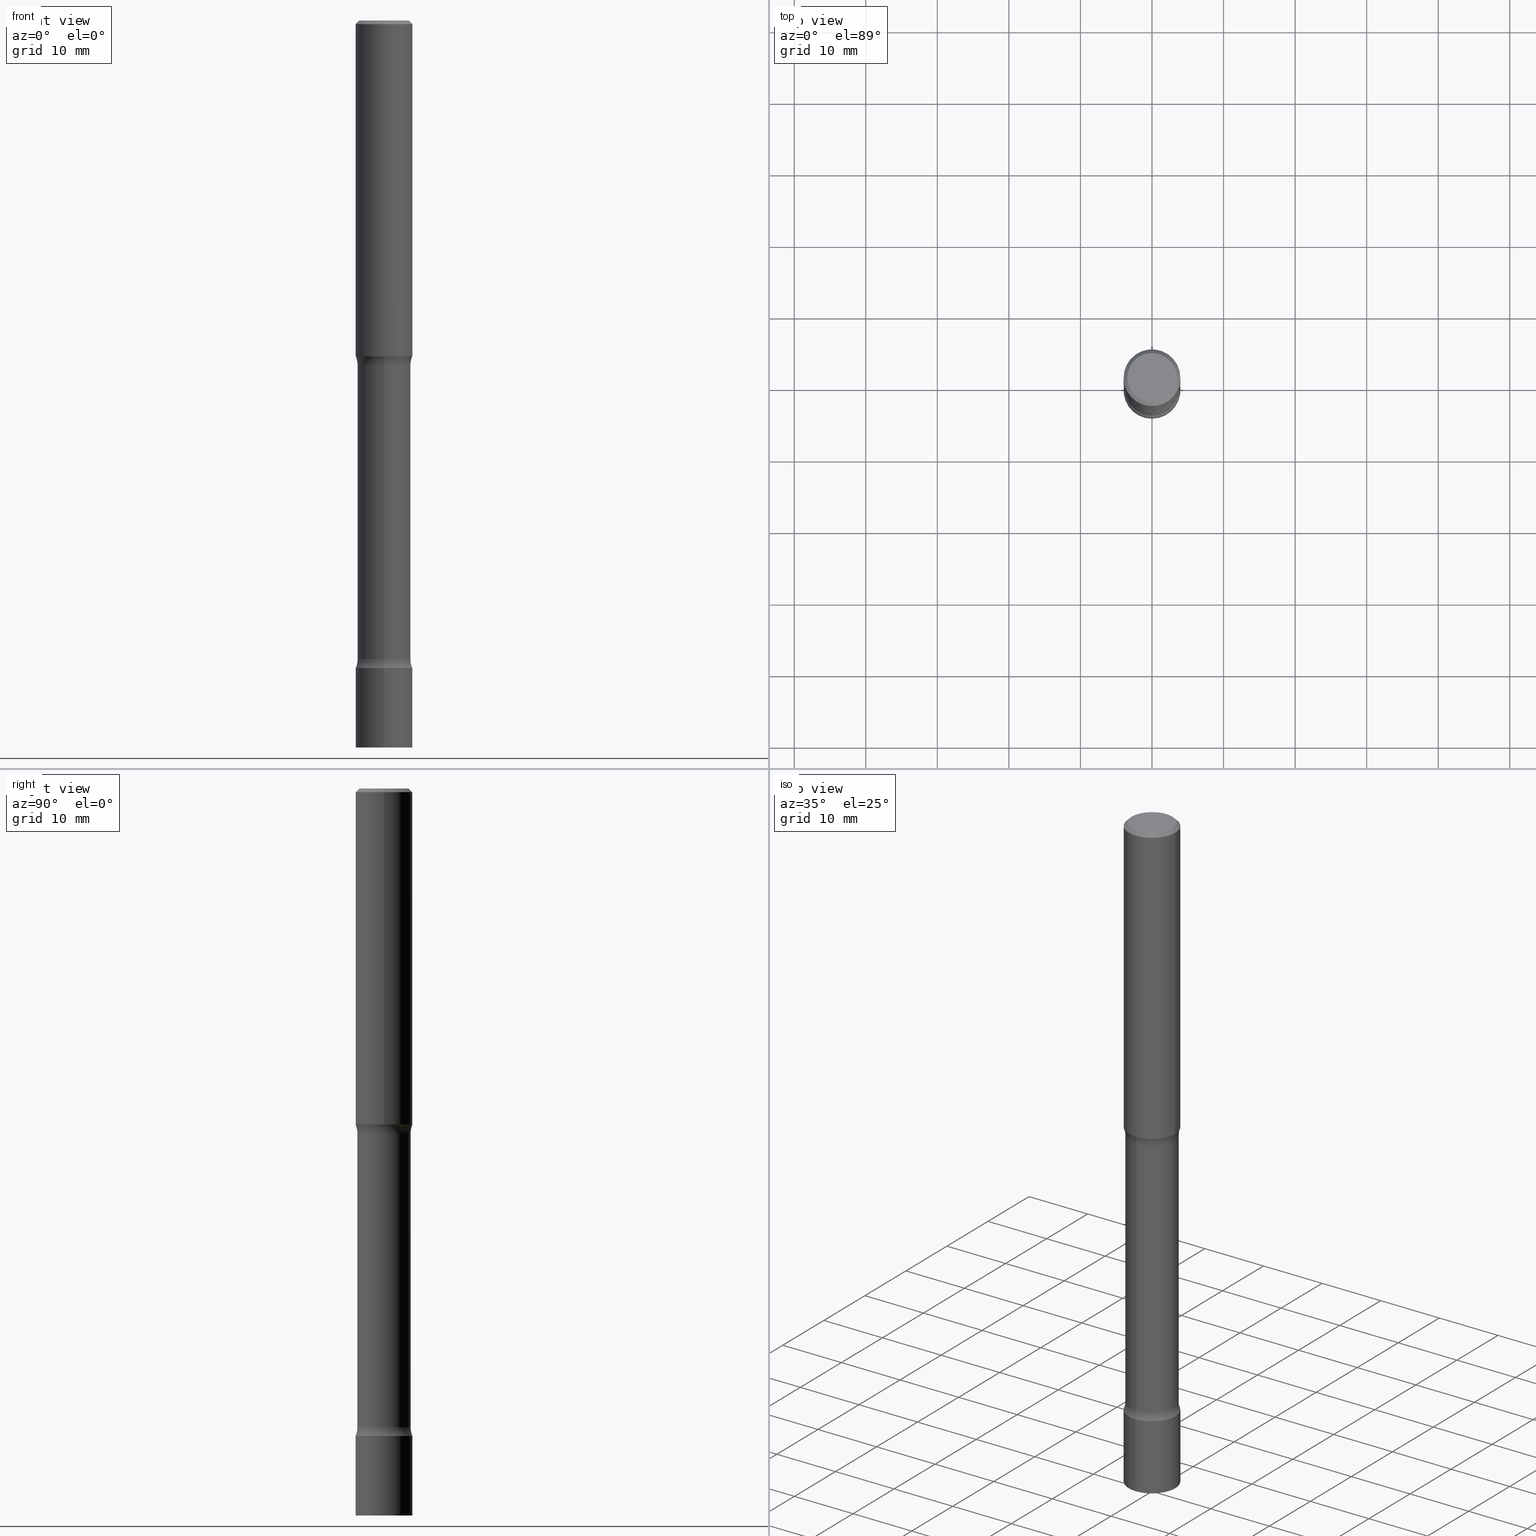
[diagram: canonical four-view strip — front | top / right | iso, engineering-drawing reading convention]
A machine part, canonical four-view strip (front | top / right | iso — engineering-drawing reading convention). The complete STEP part file that produces these views, byte-faithful:
ISO-10303-21;
HEADER;
FILE_DESCRIPTION (( 'STEP AP203' ),
    '1' );
FILE_NAME ('32731.STEP',
    '2024-03-11T13:17:54',
    ( '' ),
    ( '' ),
    'SwSTEP 2.0',
    'SolidWorks 2023',
    '' );
FILE_SCHEMA (( 'CONFIG_CONTROL_DESIGN' ));
ENDSEC;

DATA;
#1 = CLOSED_SHELL ( 'NONE', ( #132, #120, #252, #112, #453, #74, #250, #182 ) ) ;
#2 = AXIS2_PLACEMENT_3D ( 'NONE', #414, #341, #104 ) ;
#3 = DATE_AND_TIME ( #226, #218 ) ;
#4 = ADVANCED_FACE ( 'NONE', ( #448 ), #99, .F. ) ;
#5 = DIRECTION ( 'NONE',  ( 2.445804309076295273E-29, -3.491000879607367329E-15, -1.000000000000000000 ) ) ;
#6 = ORIENTED_EDGE ( 'NONE', *, *, #79, .F. ) ;
#7 = ORIENTED_EDGE ( 'NONE', *, *, #128, .F. ) ;
#8 = LOCAL_TIME ( 9, 17, 54.00000000000000000, #349 ) ;
#9 = ORIENTED_EDGE ( 'NONE', *, *, #29, .T. ) ;
#10 = CALENDAR_DATE ( 2024, 11, 3 ) ;
#11 = LINE ( 'NONE', #298, #338 ) ;
#12 = FACE_OUTER_BOUND ( 'NONE', #62, .T. ) ;
#13 = PERSON_AND_ORGANIZATION_ROLE ( 'creator' ) ;
#14 = ADVANCED_FACE ( 'NONE', ( #263 ), #418, .T. ) ;
#15 = AXIS2_PLACEMENT_3D ( 'NONE', #179, #342, #497 ) ;
#16 = CARTESIAN_POINT ( 'NONE',  ( -1.091087918388381552E-15, -0.1562500000000140166, -3.999999999999999556 ) ) ;
#17 = ORIENTED_EDGE ( 'NONE', *, *, #105, .F. ) ;
#18 = PRODUCT_DEFINITION_SHAPE ( 'NONE', 'NONE',  #242 ) ;
#19 = FACE_OUTER_BOUND ( 'NONE', #273, .T. ) ;
#20 = CARTESIAN_POINT ( 'NONE',  ( -0.1562499999999998612, 1.110223024625155554E-15, -7.685836078523284153E-30 ) ) ;
#21 = APPROVAL ( #114, 'UNSPECIFIED' ) ;
#22 = TOROIDAL_SURFACE ( 'NONE', #15, 0.2712500000000003242, 0.1250000000000000000 ) ;
#23 = PERSON_AND_ORGANIZATION ( #34, #126 ) ;
#24 = EDGE_LOOP ( 'NONE', ( #85, #365 ) ) ;
#25 = EDGE_CURVE ( 'NONE', #390, #95, #149, .T. ) ;
#26 = PLANE ( 'NONE',  #50 ) ;
#27 = CARTESIAN_POINT ( 'NONE',  ( -1.071952812151715229E-15, -0.1562500000000125178, -3.562499999999999556 ) ) ;
#28 = CARTESIAN_POINT ( 'NONE',  ( 4.324148429730863484E-29, -7.074231895616472148E-15, -1.896989794855663325 ) ) ;
#29 = EDGE_CURVE ( 'NONE', #52, #389, #373, .T. ) ;
#30 = AXIS2_PLACEMENT_3D ( 'NONE', #245, #327, #142 ) ;
#31 = CIRCLE ( 'NONE', #75, 0.1462500000000003242 ) ;
#32 = CARTESIAN_POINT ( 'NONE',  ( 9.783217236305181094E-29, -1.396400351842947089E-14, -4.000000000000000000 ) ) ;
#33 = DIRECTION ( 'NONE',  ( -1.000000000000000000, 6.982962677686265922E-15, -4.883557194083112901E-29 ) ) ;
#34 = PERSON ( 'UNSPECIFIED', 'UNSPECIFIED', 'UNSPECIFIED', ('UNSPECIFIED'), ('UNSPECIFIED'), ('UNSPECIFIED') ) ;
#35 = CARTESIAN_POINT ( 'NONE',  ( 1.110223024625249034E-15, 0.1562499999999860667, -4.000000000000000888 ) ) ;
#36 = FACE_OUTER_BOUND ( 'NONE', #168, .T. ) ;
#37 = CARTESIAN_POINT ( 'NONE',  ( 1.894128626322485594E-15, 0.2712499999999877232, -3.513510205144337206 ) ) ;
#38 = PERSON_AND_ORGANIZATION ( #34, #126 ) ;
#39 = CIRCLE ( 'NONE', #461, 0.1250000000000000000 ) ;
#40 = ORIENTED_EDGE ( 'NONE', *, *, #432, .T. ) ;
#41 = ORIENTED_EDGE ( 'NONE', *, *, #45, .F. ) ;
#42 = CARTESIAN_POINT ( 'NONE',  ( 1.894128626322444968E-15, 0.2712499999999932743, -1.896989794855663991 ) ) ;
#43 = ORIENTED_EDGE ( 'NONE', *, *, #360, .T. ) ;
#44 = EDGE_LOOP ( 'NONE', ( #202, #392, #63, #398 ) ) ;
#45 = EDGE_CURVE ( 'NONE', #256, #88, #11, .T. ) ;
#46 = APPROVAL ( #184, 'UNSPECIFIED' ) ;
#47 = DIRECTION ( 'NONE',  ( 6.982962677686266711E-15, 1.000000000000000000, -3.735860504156251567E-15 ) ) ;
#48 = FACE_OUTER_BOUND ( 'NONE', #394, .T. ) ;
#49 = DIRECTION ( 'NONE',  ( -2.445468806185136877E-29, 3.491481338843145188E-15, 1.000000000000000000 ) ) ;
#50 = AXIS2_PLACEMENT_3D ( 'NONE', #190, #111, #189 ) ;
#51 = DATE_TIME_ROLE ( 'creation_date' ) ;
#52 = VERTEX_POINT ( 'NONE', #286 ) ;
#53 = CARTESIAN_POINT ( 'NONE',  ( 8.584077680876132565E-29, -1.227895773428642942E-14, -3.513510205144336318 ) ) ;
#54 = CARTESIAN_POINT ( 'NONE',  ( 4.324148429730863484E-29, -7.074231895616472148E-15, -1.896989794855663325 ) ) ;
#55 = EDGE_CURVE ( 'NONE', #57, #88, #469, .T. ) ;
#56 = ORIENTED_EDGE ( 'NONE', *, *, #486, .T. ) ;
#57 = VERTEX_POINT ( 'NONE', #403 ) ;
#58 = AXIS2_PLACEMENT_3D ( 'NONE', #240, #489, #330 ) ;
#59 = DIRECTION ( 'NONE',  ( 6.860497997771530774E-15, 1.000000000000000000, 0.000000000000000000 ) ) ;
#60 = EDGE_CURVE ( 'NONE', #127, #294, #411, .T. ) ;
#61 = CIRCLE ( 'NONE', #479, 0.1462500000000003242 ) ;
#62 = EDGE_LOOP ( 'NONE', ( #289, #254 ) ) ;
#63 = ORIENTED_EDGE ( 'NONE', *, *, #283, .T. ) ;
#64 = DIRECTION ( 'NONE',  ( 2.635246189303941165E-29, -3.219709324759167603E-15, -1.000000000000000000 ) ) ;
#65 = VERTEX_POINT ( 'NONE', #207 ) ;
#66 = DIRECTION ( 'NONE',  ( 2.635246189303941165E-29, -3.219709324759167603E-15, -1.000000000000000000 ) ) ;
#67 = EDGE_CURVE ( 'NONE', #294, #389, #183, .T. ) ;
#68 = ORIENTED_EDGE ( 'NONE', *, *, #357, .F. ) ;
#69 = CARTESIAN_POINT ( 'NONE',  ( -1.860910081895441935E-15, -0.2712500000000122591, -3.513510205144335430 ) ) ;
#70 = TOROIDAL_SURFACE ( 'NONE', #350, 0.2712499999999999911, 0.1249999999999999445 ) ;
#71 = DIRECTION ( 'NONE',  ( 1.000000000000000000, 0.000000000000000000, 0.000000000000000000 ) ) ;
#72 = DIRECTION ( 'NONE',  ( -2.445468806185136597E-29, 3.491481338843145583E-15, 1.000000000000000000 ) ) ;
#73 = DIRECTION ( 'NONE',  ( -2.445468806185136597E-29, 3.491481338843145583E-15, 1.000000000000000000 ) ) ;
#74 = ADVANCED_FACE ( 'NONE', ( #300 ), #253, .F. ) ;
#75 = AXIS2_PLACEMENT_3D ( 'NONE', #54, #370, #209 ) ;
#76 = DIRECTION ( 'NONE',  ( 1.000000000000000000, -6.982962677686266711E-15, 4.876176775795936353E-29 ) ) ;
#77 = DIRECTION ( 'NONE',  ( -6.982962677686265922E-15, -1.000000000000000000, 0.000000000000000000 ) ) ;
#78 = SECURITY_CLASSIFICATION_LEVEL ( 'unclassified' ) ;
#79 = EDGE_CURVE ( 'NONE', #200, #57, #236, .T. ) ;
#80 = PRODUCT_RELATED_PRODUCT_CATEGORY ( 'detail', '', ( #96 ) ) ;
#81 = DIRECTION ( 'NONE',  ( 2.635246189303941165E-29, -3.219709324759167603E-15, -1.000000000000000000 ) ) ;
#82 = FACE_OUTER_BOUND ( 'NONE', #44, .T. ) ;
#83 = ORIENTED_EDGE ( 'NONE', *, *, #426, .F. ) ;
#84 = AXIS2_PLACEMENT_3D ( 'NONE', #395, #87, #47 ) ;
#85 = ORIENTED_EDGE ( 'NONE', *, *, #444, .T. ) ;
#86 = DIRECTION ( 'NONE',  ( -6.982962677686265922E-15, -1.000000000000000000, 0.000000000000000000 ) ) ;
#87 = DIRECTION ( 'NONE',  ( 2.635246189303941165E-29, -3.219709324759167603E-15, -1.000000000000000000 ) ) ;
#88 = VERTEX_POINT ( 'NONE', #290 ) ;
#89 = ORIENTED_EDGE ( 'NONE', *, *, #364, .F. ) ;
#90 = CARTESIAN_POINT ( 'NONE',  ( 1.110223024625254556E-15, 0.1562499999999876210, -3.562500000000000444 ) ) ;
#91 = VECTOR ( 'NONE', #64, 39.37007874015748143 ) ;
#92 = CC_DESIGN_APPROVAL ( #46, ( #242 ) ) ;
#93 = APPROVAL_ROLE ( '' ) ;
#94 = DIRECTION ( 'NONE',  ( 2.635246189303941165E-29, -3.219709324759167603E-15, -1.000000000000000000 ) ) ;
#95 = VERTEX_POINT ( 'NONE', #16 ) ;
#96 = PRODUCT ( '32731', '32731', '', ( #308 ) ) ;
#97 = ORIENTED_EDGE ( 'NONE', *, *, #283, .F. ) ;
#98 = CARTESIAN_POINT ( 'NONE',  ( 0.1562499999999998612, -1.091087918388478187E-15, 7.619026212181143371E-30 ) ) ;
#99 = PLANE ( 'NONE',  #115 ) ;
#100 = DIRECTION ( 'NONE',  ( 2.635246189303941165E-29, -3.219709324759167603E-15, -1.000000000000000000 ) ) ;
#101 = APPROVAL_PERSON_ORGANIZATION ( #23, #46, #303 ) ;
#102 = DIRECTION ( 'NONE',  ( 6.982962677686266711E-15, 1.000000000000000000, -3.735860504156253145E-15 ) ) ;
#103 = CARTESIAN_POINT ( 'NONE',  ( 8.711982622034549126E-29, -1.243840226962870597E-14, -3.562500000000000000 ) ) ;
#104 = DIRECTION ( 'NONE',  ( -6.982962677686266711E-15, -1.000000000000000000, 3.496765431890256131E-15 ) ) ;
#105 = EDGE_CURVE ( 'NONE', #52, #127, #491, .T. ) ;
#106 = CIRCLE ( 'NONE', #58, 0.1562500000000000000 ) ;
#107 = CARTESIAN_POINT ( 'NONE',  ( 0.000000000000000000, 0.000000000000000000, 0.000000000000000000 ) ) ;
#108 = AXIS2_PLACEMENT_3D ( 'NONE', #188, #161, #311 ) ;
#109 = FACE_OUTER_BOUND ( 'NONE', #124, .T. ) ;
#110 = DIRECTION ( 'NONE',  ( 2.438088387897960049E-29, -3.491481338843145188E-15, -1.000000000000000000 ) ) ;
#111 = DIRECTION ( 'NONE',  ( -2.438088387897960049E-29, 3.491481338843145188E-15, 1.000000000000000000 ) ) ;
#112 = ADVANCED_FACE ( 'NONE', ( #19 ), #22, .F. ) ;
#113 = DIRECTION ( 'NONE',  ( -6.982962677686266711E-15, -1.000000000000000000, 3.496765431890256131E-15 ) ) ;
#114 = APPROVAL_STATUS ( 'not_yet_approved' ) ;
#115 = AXIS2_PLACEMENT_3D ( 'NONE', #155, #110, #165 ) ;
#116 = CARTESIAN_POINT ( 'NONE',  ( -1.071952812151762561E-15, -0.1562500000000073275, -1.847999999999998977 ) ) ;
#117 = DIRECTION ( 'NONE',  ( -2.445804309076295273E-29, 3.491000879607367723E-15, 1.000000000000000000 ) ) ;
#118 = CARTESIAN_POINT ( 'NONE',  ( 9.781875224740546387E-29, -1.396592535537258233E-14, -4.000000000000000000 ) ) ;
#119 = DATE_AND_TIME ( #416, #193 ) ;
#120 = ADVANCED_FACE ( 'NONE', ( #337 ), #312, .F. ) ;
#121 = FACE_OUTER_BOUND ( 'NONE', #301, .T. ) ;
#122 = EDGE_CURVE ( 'NONE', #194, #57, #146, .T. ) ;
#123 = ORIENTED_EDGE ( 'NONE', *, *, #426, .T. ) ;
#124 = EDGE_LOOP ( 'NONE', ( #363, #17, #9, #206 ) ) ;
#125 = AXIS2_PLACEMENT_3D ( 'NONE', #160, #260, #467 ) ;
#126 = ORGANIZATION ( 'UNSPECIFIED', 'UNSPECIFIED', '' ) ;
#127 = VERTEX_POINT ( 'NONE', #213 ) ;
#128 = EDGE_CURVE ( 'NONE', #228, #389, #376, .T. ) ;
#129 = ORIENTED_EDGE ( 'NONE', *, *, #45, .T. ) ;
#130 = DIRECTION ( 'NONE',  ( 1.000000000000000000, -6.860497997771530774E-15, 4.844127126895600816E-29 ) ) ;
#131 = ORIENTED_EDGE ( 'NONE', *, *, #55, .F. ) ;
#132 = ADVANCED_FACE ( 'NONE', ( #48 ), #488, .T. ) ;
#133 = CYLINDRICAL_SURFACE ( 'NONE', #332, 0.1462500000000002409 ) ;
#134 = VERTEX_POINT ( 'NONE', #279 ) ;
#135 = CARTESIAN_POINT ( 'NONE',  ( -1.860910081895486900E-15, -0.2712500000000073741, -1.896989794855662437 ) ) ;
#136 = AXIS2_PLACEMENT_3D ( 'NONE', #325, #484, #166 ) ;
#137 = CIRCLE ( 'NONE', #2, 0.1562500000000000278 ) ;
#138 = PERSON_AND_ORGANIZATION ( #34, #126 ) ;
#139 = DIRECTION ( 'NONE',  ( -6.982962677686266711E-15, -1.000000000000000000, 3.496765431890256131E-15 ) ) ;
#140 = DIRECTION ( 'NONE',  ( -2.445804309076295273E-29, 3.491000879607367723E-15, 1.000000000000000000 ) ) ;
#141 = EDGE_LOOP ( 'NONE', ( #323, #233, #169, #361 ) ) ;
#142 = DIRECTION ( 'NONE',  ( 6.982962677686266711E-15, 1.000000000000000000, -3.735860504156253145E-15 ) ) ;
#143 = ADVANCED_FACE ( 'NONE', ( #204 ), #196, .F. ) ;
#144 = ORIENTED_EDGE ( 'NONE', *, *, #444, .F. ) ;
#145 = UNCERTAINTY_MEASURE_WITH_UNIT (LENGTH_MEASURE( 1.000000000000000082E-05 ), #506, 'distance_accuracy_value', 'NONE');
#146 = LINE ( 'NONE', #410, #91 ) ;
#147 = CARTESIAN_POINT ( 'NONE',  ( -0.1562499999999997780, 1.021258291611614495E-15, -0.02000000000000000042 ) ) ;
#148 = ORIENTED_EDGE ( 'NONE', *, *, #493, .T. ) ;
#149 = CIRCLE ( 'NONE', #439, 0.1562500000000000278 ) ;
#150 = EDGE_CURVE ( 'NONE', #194, #232, #39, .T. ) ;
#151 = APPLICATION_PROTOCOL_DEFINITION ( 'international standard', 'config_control_design', 1994, #437 ) ;
#152 = DIRECTION ( 'NONE',  ( -2.445468806185136597E-29, 3.491481338843145583E-15, 1.000000000000000000 ) ) ;
#153 = CARTESIAN_POINT ( 'NONE',  ( 4.519226353830131610E-29, -6.452257514182131992E-15, -1.847999999999999421 ) ) ;
#154 = DIRECTION ( 'NONE',  ( -2.445804309076295273E-29, 3.491000879607367329E-15, 1.000000000000000000 ) ) ;
#155 = CARTESIAN_POINT ( 'NONE',  ( 9.514286648347519855E-16, 0.1362499999999997324, -4.757143324173776691E-16 ) ) ;
#156 = CIRCLE ( 'NONE', #30, 0.1462500000000001577 ) ;
#157 = CARTESIAN_POINT ( 'NONE',  ( 9.783217236305181094E-29, -1.396400351842947089E-14, -4.000000000000000000 ) ) ;
#158 = PRODUCT_DEFINITION_FORMATION_WITH_SPECIFIED_SOURCE ( 'ANY', '', #96, .NOT_KNOWN. ) ;
#159 = DIRECTION ( 'NONE',  ( 6.982962677686266711E-15, 1.000000000000000000, -3.219709324759167603E-15 ) ) ;
#160 = CARTESIAN_POINT ( 'NONE',  ( 4.890937612370273159E-31, -6.982962677686291609E-17, -0.02000000000000000042 ) ) ;
#161 = DIRECTION ( 'NONE',  ( 2.635246189303941165E-29, -3.219709324759167603E-15, -1.000000000000000000 ) ) ;
#162 = PERSON_AND_ORGANIZATION_ROLE ( 'classification_officer' ) ;
#163 = AXIS2_PLACEMENT_3D ( 'NONE', #422, #72, #76 ) ;
#164 = DIRECTION ( 'NONE',  ( -2.445468806185136597E-29, 3.491481338843145583E-15, 1.000000000000000000 ) ) ;
#165 = DIRECTION ( 'NONE',  ( -1.000000000000000000, 6.982962677686265922E-15, -4.876176775795935793E-29 ) ) ;
#166 = DIRECTION ( 'NONE',  ( 1.000000000000000000, -6.982962677686265133E-15, 0.000000000000000000 ) ) ;
#167 = ORIENTED_EDGE ( 'NONE', *, *, #79, .T. ) ;
#168 = EDGE_LOOP ( 'NONE', ( #6, #68, #40, #246 ) ) ;
#169 = ORIENTED_EDGE ( 'NONE', *, *, #67, .T. ) ;
#170 = AXIS2_PLACEMENT_3D ( 'NONE', #310, #348, #471 ) ;
#171 = CARTESIAN_POINT ( 'NONE',  ( 8.711982622034549126E-29, -1.243840226962870597E-14, -3.562500000000000000 ) ) ;
#172 = VERTEX_POINT ( 'NONE', #90 ) ;
#173 = EDGE_LOOP ( 'NONE', ( #495, #356 ) ) ;
#174 = EDGE_LOOP ( 'NONE', ( #317, #97 ) ) ;
#175 = DIRECTION ( 'NONE',  ( 2.635246189303941165E-29, -3.219709324759167603E-15, -1.000000000000000000 ) ) ;
#176 = AXIS2_PLACEMENT_3D ( 'NONE', #107, #73, #258 ) ;
#177 = EDGE_CURVE ( 'NONE', #389, #294, #378, .T. ) ;
#178 = LINE ( 'NONE', #98, #440 ) ;
#179 = CARTESIAN_POINT ( 'NONE',  ( 4.329037989531933926E-29, -7.067229767684878136E-15, -1.896989794855663325 ) ) ;
#180 = CARTESIAN_POINT ( 'NONE',  ( 4.329037989531933926E-29, -7.067229767684878136E-15, -1.896989794855663325 ) ) ;
#181 = DIRECTION ( 'NONE',  ( -2.445468806185136877E-29, 3.491481338843145188E-15, 1.000000000000000000 ) ) ;
#182 = ADVANCED_FACE ( 'NONE', ( #369 ), #133, .T. ) ;
#183 = CIRCLE ( 'NONE', #297, 0.1562499999999997780 ) ;
#184 = APPROVAL_STATUS ( 'not_yet_approved' ) ;
#185 = ORIENTED_EDGE ( 'NONE', *, *, #393, .T. ) ;
#186 = FACE_OUTER_BOUND ( 'NONE', #277, .T. ) ;
#187 = DIRECTION ( 'NONE',  ( 0.000000000000000000, 0.000000000000000000, 1.000000000000000000 ) ) ;
#188 = CARTESIAN_POINT ( 'NONE',  ( 8.713177851084301071E-29, -1.243669063360124749E-14, -3.562500000000000000 ) ) ;
#189 = DIRECTION ( 'NONE',  ( 1.000000000000000000, -6.982962677686265922E-15, 4.876176775795935793E-29 ) ) ;
#190 = CARTESIAN_POINT ( 'NONE',  ( 4.519226353830131610E-29, -6.452257514182131992E-15, -1.847999999999999421 ) ) ;
#191 = PERSON_AND_ORGANIZATION_ROLE ( 'creator' ) ;
#192 = AXIS2_PLACEMENT_3D ( 'NONE', #180, #367, #494 ) ;
#193 = LOCAL_TIME ( 9, 17, 54.00000000000000000, #459 ) ;
#194 = VERTEX_POINT ( 'NONE', #354 ) ;
#195 = DIRECTION ( 'NONE',  ( 6.982962677686265922E-15, 1.000000000000000000, -3.491000879607367329E-15 ) ) ;
#196 = PLANE ( 'NONE',  #371 ) ;
#197 = ORIENTED_EDGE ( 'NONE', *, *, #343, .T. ) ;
#198 = AXIS2_PLACEMENT_3D ( 'NONE', #281, #237, #400 ) ;
#199 = CONICAL_SURFACE ( 'NONE', #352, 0.1562499999999997780, 0.7853981633974489451 ) ;
#200 = VERTEX_POINT ( 'NONE', #27 ) ;
#201 = PERSON_AND_ORGANIZATION ( #34, #126 ) ;
#202 = ORIENTED_EDGE ( 'NONE', *, *, #351, .F. ) ;
#203 = ADVANCED_FACE ( 'NONE', ( #109 ), #284, .T. ) ;
#204 = FACE_OUTER_BOUND ( 'NONE', #24, .T. ) ;
#205 = CYLINDRICAL_SURFACE ( 'NONE', #430, 0.1562500000000000278 ) ;
#206 = ORIENTED_EDGE ( 'NONE', *, *, #177, .T. ) ;
#207 = CARTESIAN_POINT ( 'NONE',  ( -1.091087918388392202E-15, -0.1562500000000124623, -3.562499999999999556 ) ) ;
#208 = TOROIDAL_SURFACE ( 'NONE', #192, 0.2712500000000003242, 0.1250000000000000000 ) ;
#209 = DIRECTION ( 'NONE',  ( 6.982962677686267499E-15, 1.000000000000000000, -3.735860504156249201E-15 ) ) ;
#210 = CC_DESIGN_APPROVAL ( #21, ( #158 ) ) ;
#211 = CARTESIAN_POINT ( 'NONE',  ( 1.021258291611662024E-15, 0.1462499999999932743, -1.896989794855663769 ) ) ;
#212 = ORIENTED_EDGE ( 'NONE', *, *, #177, .F. ) ;
#213 = CARTESIAN_POINT ( 'NONE',  ( 0.1362499999999997324, -1.038262645562516349E-15, 6.957025900226682464E-30 ) ) ;
#214 = ADVANCED_FACE ( 'NONE', ( #265 ), #417, .T. ) ;
#215 = CARTESIAN_POINT ( 'NONE',  ( 0.1562499999999997780, -1.141782438928663133E-15, -0.02000000000000000042 ) ) ;
#216 =( NAMED_UNIT ( * ) PLANE_ANGLE_UNIT ( ) SI_UNIT ( $, .RADIAN. ) );
#217 = AXIS2_PLACEMENT_3D ( 'NONE', #103, #454, #406 ) ;
#218 = LOCAL_TIME ( 9, 17, 54.00000000000000000, #442 ) ;
#219 = DIRECTION ( 'NONE',  ( 1.000000000000000000, -6.860497997771530774E-15, 4.844127126895600816E-29 ) ) ;
#220 = CARTESIAN_POINT ( 'NONE',  ( 4.519226353830131610E-29, -6.452257514182131992E-15, -1.847999999999999421 ) ) ;
#221 = CARTESIAN_POINT ( 'NONE',  ( 1.091087918388523547E-15, 0.1562499999999934774, -1.848000000000000087 ) ) ;
#222 = AXIS2_PLACEMENT_3D ( 'NONE', #374, #336, #485 ) ;
#223 = AXIS2_PLACEMENT_3D ( 'NONE', #220, #466, #503 ) ;
#224 = CARTESIAN_POINT ( 'NONE',  ( 1.110223024625156540E-15, 0.1562500000000000278, -5.454688874386513423E-16 ) ) ;
#225 = APPROVAL_PERSON_ORGANIZATION ( #138, #21, #93 ) ;
#226 = CALENDAR_DATE ( 2024, 11, 3 ) ;
#227 = CYLINDRICAL_SURFACE ( 'NONE', #163, 0.1562499999999998612 ) ;
#228 = VERTEX_POINT ( 'NONE', #470 ) ;
#229 = APPROVAL_ROLE ( '' ) ;
#230 = VECTOR ( 'NONE', #443, 39.37007874015748854 ) ;
#231 = ORIENTED_EDGE ( 'NONE', *, *, #498, .T. ) ;
#232 = VERTEX_POINT ( 'NONE', #116 ) ;
#233 = ORIENTED_EDGE ( 'NONE', *, *, #60, .T. ) ;
#234 = ORIENTED_EDGE ( 'NONE', *, *, #150, .F. ) ;
#235 = ORIENTED_EDGE ( 'NONE', *, *, #493, .F. ) ;
#236 = CIRCLE ( 'NONE', #384, 0.1249999999999999445 ) ;
#237 = DIRECTION ( 'NONE',  ( 2.635246189303941165E-29, -3.219709324759167603E-15, -1.000000000000000000 ) ) ;
#238 = DATE_AND_TIME ( #10, #320 ) ;
#239 = ADVANCED_FACE ( 'NONE', ( #473 ), #227, .T. ) ;
#240 = CARTESIAN_POINT ( 'NONE',  ( 8.713177851084301071E-29, -1.243669063360124749E-14, -3.562500000000000000 ) ) ;
#241 = APPROVAL_DATE_TIME ( #388, #368 ) ;
#242 = PRODUCT_DEFINITION ( 'UNKNOWN', '', #158, #425 ) ;
#243 = DIRECTION ( 'NONE',  ( 2.445468806185136597E-29, -3.491481338843145583E-15, -1.000000000000000000 ) ) ;
#244 = PLANE ( 'NONE',  #385 ) ;
#245 = CARTESIAN_POINT ( 'NONE',  ( 8.584077680876132565E-29, -1.227895773428642942E-14, -3.513510205144336318 ) ) ;
#246 = ORIENTED_EDGE ( 'NONE', *, *, #270, .T. ) ;
#247 = VERTEX_POINT ( 'NONE', #387 ) ;
#248 = AXIS2_PLACEMENT_3D ( 'NONE', #272, #164, #314 ) ;
#249 = DIRECTION ( 'NONE',  ( 6.982962677686266711E-15, 1.000000000000000000, -3.219709324759167603E-15 ) ) ;
#250 = ADVANCED_FACE ( 'NONE', ( #36 ), #70, .F. ) ;
#251 = CARTESIAN_POINT ( 'NONE',  ( 0.000000000000000000, 0.000000000000000000, 0.000000000000000000 ) ) ;
#252 = ADVANCED_FACE ( 'NONE', ( #82 ), #208, .F. ) ;
#253 = PLANE ( 'NONE',  #217 ) ;
#254 = ORIENTED_EDGE ( 'NONE', *, *, #25, .F. ) ;
#255 = VECTOR ( 'NONE', #181, 39.37007874015748143 ) ;
#256 = VERTEX_POINT ( 'NONE', #211 ) ;
#257 = CIRCLE ( 'NONE', #306, 0.1250000000000000000 ) ;
#258 = DIRECTION ( 'NONE',  ( 1.000000000000000000, -6.982962677686266711E-15, 4.876176775795936353E-29 ) ) ;
#259 = EDGE_CURVE ( 'NONE', #200, #247, #106, .T. ) ;
#260 = DIRECTION ( 'NONE',  ( 2.445468806185136597E-29, -3.491481338843145583E-15, -1.000000000000000000 ) ) ;
#261 = CC_DESIGN_PERSON_AND_ORGANIZATION_ASSIGNMENT ( #472, #353, ( #158 ) ) ;
#262 = LENGTH_MEASURE_WITH_UNIT ( LENGTH_MEASURE( 0.02539999999999999897 ), #264 );
#263 = FACE_OUTER_BOUND ( 'NONE', #455, .T. ) ;
#264 =( LENGTH_UNIT ( ) NAMED_UNIT ( * ) SI_UNIT ( $, .METRE. ) );
#265 = FACE_OUTER_BOUND ( 'NONE', #478, .T. ) ;
#266 = AXIS2_PLACEMENT_3D ( 'NONE', #53, #94, #102 ) ;
#267 = FACE_OUTER_BOUND ( 'NONE', #141, .T. ) ;
#268 = AXIS2_PLACEMENT_3D ( 'NONE', #157, #419, #113 ) ;
#269 = APPROVAL_DATE_TIME ( #3, #21 ) ;
#270 = EDGE_CURVE ( 'NONE', #88, #57, #156, .T. ) ;
#271 = COORDINATED_UNIVERSAL_TIME_OFFSET ( 5, 0, .BEHIND. ) ;
#272 = CARTESIAN_POINT ( 'NONE',  ( 0.000000000000000000, 0.000000000000000000, 0.000000000000000000 ) ) ;
#273 = EDGE_LOOP ( 'NONE', ( #234, #435, #185, #197 ) ) ;
#274 = ORIENTED_EDGE ( 'NONE', *, *, #259, .F. ) ;
#275 = CLOSED_SHELL ( 'NONE', ( #239, #436, #203, #4, #507, #214 ) ) ;
#276 = AXIS2_PLACEMENT_3D ( 'NONE', #37, #33, #77 ) ;
#277 = EDGE_LOOP ( 'NONE', ( #409, #83 ) ) ;
#278 = CC_DESIGN_DATE_AND_TIME_ASSIGNMENT ( #238, #282, ( #347 ) ) ;
#279 = CARTESIAN_POINT ( 'NONE',  ( 0.1562500000000000000, -7.543345432570611166E-15, -1.847999999999999421 ) ) ;
#280 = DIRECTION ( 'NONE',  ( 2.635246189303941165E-29, -3.219709324759167603E-15, -1.000000000000000000 ) ) ;
#281 = CARTESIAN_POINT ( 'NONE',  ( 4.195048259522693857E-29, -6.916498996301653290E-15, -1.847999999999999421 ) ) ;
#282 = DATE_TIME_ROLE ( 'classification_date' ) ;
#283 = EDGE_CURVE ( 'NONE', #232, #355, #319, .T. ) ;
#284 = CONICAL_SURFACE ( 'NONE', #125, 0.1562499999999997780, 0.7853981633974489451 ) ;
#285 = CC_DESIGN_APPROVAL ( #368, ( #347 ) ) ;
#286 = CARTESIAN_POINT ( 'NONE',  ( -0.1362499999999997324, 9.863434782231834374E-16, -6.775751096333127272E-30 ) ) ;
#287 = CC_DESIGN_PERSON_AND_ORGANIZATION_ASSIGNMENT ( #201, #162, ( #347 ) ) ;
#288 = SHAPE_DEFINITION_REPRESENTATION ( #18, #487 ) ;
#289 = ORIENTED_EDGE ( 'NONE', *, *, #486, .F. ) ;
#290 = CARTESIAN_POINT ( 'NONE',  ( 1.021258291611703439E-15, 0.1462499999999878897, -3.513510205144336762 ) ) ;
#291 = DIMENSIONAL_EXPONENTS ( 1.000000000000000000, 0.000000000000000000, 0.000000000000000000, 0.000000000000000000, 0.000000000000000000, 0.000000000000000000, 0.000000000000000000 ) ;
#292 = DIRECTION ( 'NONE',  ( -6.982962677686266711E-15, -1.000000000000000000, 3.491000879607368118E-15 ) ) ;
#293 = CARTESIAN_POINT ( 'NONE',  ( 0.000000000000000000, 0.000000000000000000, 0.000000000000000000 ) ) ;
#294 = VERTEX_POINT ( 'NONE', #295 ) ;
#295 = CARTESIAN_POINT ( 'NONE',  ( 0.1562499999999997780, -1.141782438928663133E-15, -0.02000000000000000042 ) ) ;
#296 = ORIENTED_EDGE ( 'NONE', *, *, #25, .T. ) ;
#297 = AXIS2_PLACEMENT_3D ( 'NONE', #372, #152, #413 ) ;
#298 = CARTESIAN_POINT ( 'NONE',  ( 1.021258291611716850E-15, 0.1462499999999863909, -4.000000000000000888 ) ) ;
#299 = LOCAL_TIME ( 9, 17, 54.00000000000000000, #271 ) ;
#300 = FACE_OUTER_BOUND ( 'NONE', #496, .T. ) ;
#301 = EDGE_LOOP ( 'NONE', ( #235, #296, #43, #427 ) ) ;
#302 = ORIENTED_EDGE ( 'NONE', *, *, #465, .T. ) ;
#303 = APPROVAL_ROLE ( '' ) ;
#304 = CC_DESIGN_PERSON_AND_ORGANIZATION_ASSIGNMENT ( #508, #13, ( #242 ) ) ;
#305 = AXIS2_PLACEMENT_3D ( 'NONE', #449, #100, #249 ) ;
#306 = AXIS2_PLACEMENT_3D ( 'NONE', #42, #431, #86 ) ;
#307 = DIRECTION ( 'NONE',  ( 1.000000000000000000, -6.982962677686269077E-15, 0.000000000000000000 ) ) ;
#308 = MECHANICAL_CONTEXT ( 'NONE', #340, 'mechanical' ) ;
#309 = EDGE_CURVE ( 'NONE', #172, #65, #450, .T. ) ;
#310 = CARTESIAN_POINT ( 'NONE',  ( 4.519226353830131610E-29, -6.452257514182131992E-15, -1.847999999999999421 ) ) ;
#311 = DIRECTION ( 'NONE',  ( 6.982962677686265133E-15, 1.000000000000000000, -3.496765431890256920E-15 ) ) ;
#312 = TOROIDAL_SURFACE ( 'NONE', #305, 0.2712499999999999911, 0.1249999999999999445 ) ;
#313 =( GEOMETRIC_REPRESENTATION_CONTEXT ( 3 ) GLOBAL_UNCERTAINTY_ASSIGNED_CONTEXT ( ( #145 ) ) GLOBAL_UNIT_ASSIGNED_CONTEXT ( ( #506, #216, #456 ) ) REPRESENTATION_CONTEXT ( 'NONE', 'WORKASPACE' ) );
#314 = DIRECTION ( 'NONE',  ( 1.000000000000000000, -6.982962677686266711E-15, 4.876176775795936353E-29 ) ) ;
#315 = CARTESIAN_POINT ( 'NONE',  ( 0.000000000000000000, 0.000000000000000000, 0.000000000000000000 ) ) ;
#316 = PERSON_AND_ORGANIZATION ( #34, #126 ) ;
#317 = ORIENTED_EDGE ( 'NONE', *, *, #343, .F. ) ;
#318 = ORIENTED_EDGE ( 'NONE', *, *, #357, .T. ) ;
#319 = CIRCLE ( 'NONE', #383, 0.1562500000000003886 ) ;
#320 = LOCAL_TIME ( 9, 17, 54.00000000000000000, #424 ) ;
#321 = EDGE_LOOP ( 'NONE', ( #274, #167, #482, #335 ) ) ;
#322 = DIRECTION ( 'NONE',  ( 2.445804309076295273E-29, -3.491000879607367329E-15, -1.000000000000000000 ) ) ;
#323 = ORIENTED_EDGE ( 'NONE', *, *, #457, .F. ) ;
#324 = ORIENTED_EDGE ( 'NONE', *, *, #122, .T. ) ;
#325 = CARTESIAN_POINT ( 'NONE',  ( 4.890937612370273159E-31, -6.982962677686291609E-17, -0.02000000000000000042 ) ) ;
#326 = LINE ( 'NONE', #447, #333 ) ;
#327 = DIRECTION ( 'NONE',  ( 2.635246189303941165E-29, -3.219709324759167603E-15, -1.000000000000000000 ) ) ;
#328 = ORIENTED_EDGE ( 'NONE', *, *, #122, .F. ) ;
#329 = CALENDAR_DATE ( 2024, 11, 3 ) ;
#330 = DIRECTION ( 'NONE',  ( 6.982962677686265133E-15, 1.000000000000000000, -3.496765431890256920E-15 ) ) ;
#331 = EDGE_LOOP ( 'NONE', ( #302, #477, #375, #89 ) ) ;
#332 = AXIS2_PLACEMENT_3D ( 'NONE', #399, #280, #404 ) ;
#333 = VECTOR ( 'NONE', #434, 39.37007874015748143 ) ;
#334 = CARTESIAN_POINT ( 'NONE',  ( 0.000000000000000000, 0.000000000000000000, 0.000000000000000000 ) ) ;
#335 = ORIENTED_EDGE ( 'NONE', *, *, #432, .F. ) ;
#336 = DIRECTION ( 'NONE',  ( -2.445804309076295273E-29, 3.491000879607367723E-15, 1.000000000000000000 ) ) ;
#337 = FACE_OUTER_BOUND ( 'NONE', #321, .T. ) ;
#338 = VECTOR ( 'NONE', #175, 39.37007874015748143 ) ;
#339 = CIRCLE ( 'NONE', #462, 0.1562500000000000000 ) ;
#340 = APPLICATION_CONTEXT ( 'configuration controlled 3d designs of mechanical parts and assemblies' ) ;
#341 = DIRECTION ( 'NONE',  ( -2.445804309076295273E-29, 3.491000879607367723E-15, 1.000000000000000000 ) ) ;
#342 = DIRECTION ( 'NONE',  ( 2.635246189303941165E-29, -3.219709324759167603E-15, -1.000000000000000000 ) ) ;
#343 = EDGE_CURVE ( 'NONE', #355, #232, #421, .T. ) ;
#344 = PERSON_AND_ORGANIZATION_ROLE ( 'design_owner' ) ;
#345 = AXIS2_PLACEMENT_3D ( 'NONE', #293, #446, #380 ) ;
#346 = CARTESIAN_POINT ( 'NONE',  ( 8.592179606893614025E-29, -1.226735531509640183E-14, -3.513510205144336318 ) ) ;
#347 = SECURITY_CLASSIFICATION ( '', '', #78 ) ;
#348 = DIRECTION ( 'NONE',  ( -2.445468806185136597E-29, 3.491481338843145583E-15, 1.000000000000000000 ) ) ;
#349 = COORDINATED_UNIVERSAL_TIME_OFFSET ( 5, 0, .BEHIND. ) ;
#350 = AXIS2_PLACEMENT_3D ( 'NONE', #346, #81, #159 ) ;
#351 = EDGE_CURVE ( 'NONE', #194, #256, #31, .T. ) ;
#352 = AXIS2_PLACEMENT_3D ( 'NONE', #377, #243, #501 ) ;
#353 = PERSON_AND_ORGANIZATION_ROLE ( 'design_supplier' ) ;
#354 = CARTESIAN_POINT ( 'NONE',  ( -1.037650322162904106E-15, -0.1462500000000074296, -1.896989794855662659 ) ) ;
#355 = VERTEX_POINT ( 'NONE', #221 ) ;
#356 = ORIENTED_EDGE ( 'NONE', *, *, #457, .T. ) ;
#357 = EDGE_CURVE ( 'NONE', #247, #200, #397, .T. ) ;
#358 = ADVANCED_FACE ( 'NONE', ( #121 ), #205, .T. ) ;
#359 = CC_DESIGN_PERSON_AND_ORGANIZATION_ASSIGNMENT ( #316, #191, ( #158 ) ) ;
#360 = EDGE_CURVE ( 'NONE', #95, #65, #326, .T. ) ;
#361 = ORIENTED_EDGE ( 'NONE', *, *, #29, .F. ) ;
#362 = CC_DESIGN_SECURITY_CLASSIFICATION ( #347, ( #158 ) ) ;
#363 = ORIENTED_EDGE ( 'NONE', *, *, #60, .F. ) ;
#364 = EDGE_CURVE ( 'NONE', #134, #294, #178, .T. ) ;
#365 = ORIENTED_EDGE ( 'NONE', *, *, #309, .T. ) ;
#366 = APPROVAL_STATUS ( 'not_yet_approved' ) ;
#367 = DIRECTION ( 'NONE',  ( 2.635246189303941165E-29, -3.219709324759167603E-15, -1.000000000000000000 ) ) ;
#368 = APPROVAL ( #366, 'UNSPECIFIED' ) ;
#369 = FACE_OUTER_BOUND ( 'NONE', #483, .T. ) ;
#370 = DIRECTION ( 'NONE',  ( 2.635246189303941165E-29, -3.219709324759167603E-15, -1.000000000000000000 ) ) ;
#371 = AXIS2_PLACEMENT_3D ( 'NONE', #171, #322, #481 ) ;
#372 = CARTESIAN_POINT ( 'NONE',  ( 4.890937612370273159E-31, -6.982962677686291609E-17, -0.02000000000000000042 ) ) ;
#373 = LINE ( 'NONE', #147, #230 ) ;
#374 = CARTESIAN_POINT ( 'NONE',  ( 8.713177851084301071E-29, -1.243669063360124749E-14, -3.562500000000000000 ) ) ;
#375 = ORIENTED_EDGE ( 'NONE', *, *, #67, .F. ) ;
#376 = LINE ( 'NONE', #20, #255 ) ;
#377 = CARTESIAN_POINT ( 'NONE',  ( 4.890937612370273159E-31, -6.982962677686291609E-17, -0.02000000000000000042 ) ) ;
#378 = CIRCLE ( 'NONE', #136, 0.1562499999999997780 ) ;
#379 = ADVANCED_FACE ( 'NONE', ( #12 ), #244, .T. ) ;
#380 = DIRECTION ( 'NONE',  ( 1.000000000000000000, -6.982962677686266711E-15, 4.876176775795936353E-29 ) ) ;
#381 = APPLICATION_PROTOCOL_DEFINITION ( 'international standard', 'config_control_design', 1994, #340 ) ;
#382 = DIRECTION ( 'NONE',  ( -2.445468806185136597E-29, 3.491481338843145583E-15, 1.000000000000000000 ) ) ;
#383 = AXIS2_PLACEMENT_3D ( 'NONE', #402, #438, #405 ) ;
#384 = AXIS2_PLACEMENT_3D ( 'NONE', #69, #219, #59 ) ;
#385 = AXIS2_PLACEMENT_3D ( 'NONE', #118, #5, #195 ) ;
#386 = LINE ( 'NONE', #224, #500 ) ;
#387 = CARTESIAN_POINT ( 'NONE',  ( 1.091087918388566343E-15, 0.1562499999999876488, -3.562500000000000444 ) ) ;
#388 = DATE_AND_TIME ( #475, #8 ) ;
#389 = VERTEX_POINT ( 'NONE', #423 ) ;
#390 = VERTEX_POINT ( 'NONE', #35 ) ;
#391 = CIRCLE ( 'NONE', #276, 0.1249999999999999445 ) ;
#392 = ORIENTED_EDGE ( 'NONE', *, *, #150, .T. ) ;
#393 = EDGE_CURVE ( 'NONE', #256, #355, #257, .T. ) ;
#394 = EDGE_LOOP ( 'NONE', ( #231, #324, #429, #41 ) ) ;
#395 = CARTESIAN_POINT ( 'NONE',  ( 9.866098058904775575E-29, -1.384531346318338381E-14, -4.000000000000000000 ) ) ;
#396 = VECTOR ( 'NONE', #441, 39.37007874015748854 ) ;
#397 = CIRCLE ( 'NONE', #108, 0.1562500000000000000 ) ;
#398 = ORIENTED_EDGE ( 'NONE', *, *, #393, .F. ) ;
#399 = CARTESIAN_POINT ( 'NONE',  ( 9.866098058904775575E-29, -1.384531346318338381E-14, -4.000000000000000000 ) ) ;
#400 = DIRECTION ( 'NONE',  ( 6.982962677686265922E-15, 1.000000000000000000, -3.496765431890248242E-15 ) ) ;
#401 = CC_DESIGN_PERSON_AND_ORGANIZATION_ASSIGNMENT ( #499, #344, ( #96 ) ) ;
#402 = CARTESIAN_POINT ( 'NONE',  ( 4.195048259522693857E-29, -6.916498996301653290E-15, -1.847999999999999421 ) ) ;
#403 = CARTESIAN_POINT ( 'NONE',  ( -1.037650322162858352E-15, -0.1462500000000124534, -3.513510205144335874 ) ) ;
#404 = DIRECTION ( 'NONE',  ( 6.982962677686266711E-15, 1.000000000000000000, -3.735860504156251567E-15 ) ) ;
#405 = DIRECTION ( 'NONE',  ( 6.982962677686265922E-15, 1.000000000000000000, -3.496765431890248242E-15 ) ) ;
#406 = DIRECTION ( 'NONE',  ( -6.982962677686265922E-15, -1.000000000000000000, 3.219709324759167603E-15 ) ) ;
#407 = AXIS2_PLACEMENT_3D ( 'NONE', #315, #474, #420 ) ;
#408 = CIRCLE ( 'NONE', #268, 0.1562500000000000278 ) ;
#409 = ORIENTED_EDGE ( 'NONE', *, *, #465, .F. ) ;
#410 = CARTESIAN_POINT ( 'NONE',  ( -1.003347832173989445E-15, -0.1462500000000140910, -3.999999999999999556 ) ) ;
#411 = LINE ( 'NONE', #215, #396 ) ;
#412 = FACE_OUTER_BOUND ( 'NONE', #174, .T. ) ;
#413 = DIRECTION ( 'NONE',  ( 1.000000000000000000, -6.982962677686265133E-15, 0.000000000000000000 ) ) ;
#414 = CARTESIAN_POINT ( 'NONE',  ( 8.713177851084301071E-29, -1.243669063360124749E-14, -3.562500000000000000 ) ) ;
#415 = AXIS2_PLACEMENT_3D ( 'NONE', #251, #187, #71 ) ;
#416 = CALENDAR_DATE ( 2024, 11, 3 ) ;
#417 = CYLINDRICAL_SURFACE ( 'NONE', #248, 0.1562499999999998612 ) ;
#418 = CYLINDRICAL_SURFACE ( 'NONE', #407, 0.1562500000000000278 ) ;
#419 = DIRECTION ( 'NONE',  ( -2.445804309076295273E-29, 3.491000879607367723E-15, 1.000000000000000000 ) ) ;
#420 = DIRECTION ( 'NONE',  ( -6.982962677686266711E-15, -1.000000000000000000, 3.491000879607368118E-15 ) ) ;
#421 = CIRCLE ( 'NONE', #198, 0.1562500000000003886 ) ;
#422 = CARTESIAN_POINT ( 'NONE',  ( 0.000000000000000000, 0.000000000000000000, 0.000000000000000000 ) ) ;
#423 = CARTESIAN_POINT ( 'NONE',  ( -0.1562499999999997780, 1.021258291611614495E-15, -0.02000000000000000042 ) ) ;
#424 = COORDINATED_UNIVERSAL_TIME_OFFSET ( 5, 0, .BEHIND. ) ;
#425 = DESIGN_CONTEXT ( 'detailed design', #437, 'design' ) ;
#426 = EDGE_CURVE ( 'NONE', #228, #134, #505, .T. ) ;
#427 = ORIENTED_EDGE ( 'NONE', *, *, #309, .F. ) ;
#428 = CLOSED_SHELL ( 'NONE', ( #14, #358, #143, #379 ) ) ;
#429 = ORIENTED_EDGE ( 'NONE', *, *, #270, .F. ) ;
#430 = AXIS2_PLACEMENT_3D ( 'NONE', #334, #140, #292 ) ;
#431 = DIRECTION ( 'NONE',  ( -1.000000000000000000, 6.982962677686265922E-15, -4.883557194083112901E-29 ) ) ;
#432 = EDGE_CURVE ( 'NONE', #247, #88, #391, .T. ) ;
#433 = DIRECTION ( 'NONE',  ( 6.860497997771530774E-15, 1.000000000000000000, 0.000000000000000000 ) ) ;
#434 = DIRECTION ( 'NONE',  ( -2.445804309076295273E-29, 3.491000879607367329E-15, 1.000000000000000000 ) ) ;
#435 = ORIENTED_EDGE ( 'NONE', *, *, #498, .F. ) ;
#436 = ADVANCED_FACE ( 'NONE', ( #267 ), #199, .T. ) ;
#437 = APPLICATION_CONTEXT ( 'configuration controlled 3d designs of mechanical parts and assemblies' ) ;
#438 = DIRECTION ( 'NONE',  ( 2.635246189303941165E-29, -3.219709324759167603E-15, -1.000000000000000000 ) ) ;
#439 = AXIS2_PLACEMENT_3D ( 'NONE', #32, #117, #139 ) ;
#440 = VECTOR ( 'NONE', #49, 39.37007874015748143 ) ;
#441 = DIRECTION ( 'NONE',  ( 0.7071067811865479058, -7.319954787623256045E-15, -0.7071067811865470176 ) ) ;
#442 = COORDINATED_UNIVERSAL_TIME_OFFSET ( 5, 0, .BEHIND. ) ;
#443 = DIRECTION ( 'NONE',  ( -0.7071067811865479058, 2.468850131082261399E-15, -0.7071067811865470176 ) ) ;
#444 = EDGE_CURVE ( 'NONE', #65, #172, #137, .T. ) ;
#445 = CC_DESIGN_DATE_AND_TIME_ASSIGNMENT ( #490, #51, ( #242 ) ) ;
#446 = DIRECTION ( 'NONE',  ( -2.445468806185136597E-29, 3.491481338843145583E-15, 1.000000000000000000 ) ) ;
#447 = CARTESIAN_POINT ( 'NONE',  ( -1.091087918388479371E-15, -0.1562500000000000278, 5.454688874386513423E-16 ) ) ;
#448 = FACE_OUTER_BOUND ( 'NONE', #173, .T. ) ;
#449 = CARTESIAN_POINT ( 'NONE',  ( 8.592179606893614025E-29, -1.226735531509640183E-14, -3.513510205144336318 ) ) ;
#450 = CIRCLE ( 'NONE', #222, 0.1562500000000000278 ) ;
#451 = APPROVAL_PERSON_ORGANIZATION ( #38, #368, #229 ) ;
#452 = CIRCLE ( 'NONE', #176, 0.1362499999999997324 ) ;
#453 = ADVANCED_FACE ( 'NONE', ( #412 ), #504, .F. ) ;
#454 = DIRECTION ( 'NONE',  ( -2.635246189303940604E-29, 3.219709324759167603E-15, 1.000000000000000000 ) ) ;
#455 = EDGE_LOOP ( 'NONE', ( #56, #148, #144, #480 ) ) ;
#456 =( NAMED_UNIT ( * ) SI_UNIT ( $, .STERADIAN. ) SOLID_ANGLE_UNIT ( ) );
#457 = EDGE_CURVE ( 'NONE', #127, #52, #452, .T. ) ;
#458 = MANIFOLD_SOLID_BREP ( 'Body-Move/Copy2[2]', #275 ) ;
#459 = COORDINATED_UNIVERSAL_TIME_OFFSET ( 5, 0, .BEHIND. ) ;
#460 = MANIFOLD_SOLID_BREP ( 'Body-Move/Copy2[4]', #1 ) ;
#461 = AXIS2_PLACEMENT_3D ( 'NONE', #135, #130, #433 ) ;
#462 = AXIS2_PLACEMENT_3D ( 'NONE', #153, #382, #307 ) ;
#463 = DIRECTION ( 'NONE',  ( 6.982962677686267499E-15, 1.000000000000000000, -3.735860504156249201E-15 ) ) ;
#464 = MANIFOLD_SOLID_BREP ( 'Body-Move/Copy2[1]', #428 ) ;
#465 = EDGE_CURVE ( 'NONE', #134, #228, #339, .T. ) ;
#466 = DIRECTION ( 'NONE',  ( 2.635246189303940604E-29, -3.219709324759167603E-15, -1.000000000000000000 ) ) ;
#467 = DIRECTION ( 'NONE',  ( -1.000000000000000000, 6.982962677686265133E-15, 0.000000000000000000 ) ) ;
#468 = APPROVAL_DATE_TIME ( #119, #46 ) ;
#469 = CIRCLE ( 'NONE', #266, 0.1462500000000001577 ) ;
#470 = CARTESIAN_POINT ( 'NONE',  ( -0.1562500000000000000, -2.150820545854337555E-15, -1.847999999999999421 ) ) ;
#471 = DIRECTION ( 'NONE',  ( 1.000000000000000000, -6.982962677686269077E-15, 0.000000000000000000 ) ) ;
#472 = PERSON_AND_ORGANIZATION ( #34, #126 ) ;
#473 = FACE_OUTER_BOUND ( 'NONE', #331, .T. ) ;
#474 = DIRECTION ( 'NONE',  ( -2.445804309076295273E-29, 3.491000879607367723E-15, 1.000000000000000000 ) ) ;
#475 = CALENDAR_DATE ( 2024, 11, 3 ) ;
#476 = ORIENTED_EDGE ( 'NONE', *, *, #259, .T. ) ;
#477 = ORIENTED_EDGE ( 'NONE', *, *, #128, .T. ) ;
#478 = EDGE_LOOP ( 'NONE', ( #7, #123, #492, #212 ) ) ;
#479 = AXIS2_PLACEMENT_3D ( 'NONE', #28, #66, #463 ) ;
#480 = ORIENTED_EDGE ( 'NONE', *, *, #360, .F. ) ;
#481 = DIRECTION ( 'NONE',  ( 6.982962677686265922E-15, 1.000000000000000000, -3.491000879607367329E-15 ) ) ;
#482 = ORIENTED_EDGE ( 'NONE', *, *, #55, .T. ) ;
#483 = EDGE_LOOP ( 'NONE', ( #328, #502, #129, #131 ) ) ;
#484 = DIRECTION ( 'NONE',  ( -2.445468806185136597E-29, 3.491481338843145583E-15, 1.000000000000000000 ) ) ;
#485 = DIRECTION ( 'NONE',  ( -6.982962677686266711E-15, -1.000000000000000000, 3.496765431890256131E-15 ) ) ;
#486 = EDGE_CURVE ( 'NONE', #95, #390, #408, .T. ) ;
#487 = ADVANCED_BREP_SHAPE_REPRESENTATION ( '32731', ( #464, #458, #460, #415 ), #313 ) ;
#488 = CYLINDRICAL_SURFACE ( 'NONE', #84, 0.1462500000000002409 ) ;
#489 = DIRECTION ( 'NONE',  ( 2.635246189303941165E-29, -3.219709324759167603E-15, -1.000000000000000000 ) ) ;
#490 = DATE_AND_TIME ( #329, #299 ) ;
#491 = CIRCLE ( 'NONE', #345, 0.1362499999999997324 ) ;
#492 = ORIENTED_EDGE ( 'NONE', *, *, #364, .T. ) ;
#493 = EDGE_CURVE ( 'NONE', #390, #172, #386, .T. ) ;
#494 = DIRECTION ( 'NONE',  ( 6.982962677686265133E-15, 1.000000000000000000, -3.219709324759167998E-15 ) ) ;
#495 = ORIENTED_EDGE ( 'NONE', *, *, #105, .T. ) ;
#496 = EDGE_LOOP ( 'NONE', ( #318, #476 ) ) ;
#497 = DIRECTION ( 'NONE',  ( 6.982962677686265133E-15, 1.000000000000000000, -3.219709324759167998E-15 ) ) ;
#498 = EDGE_CURVE ( 'NONE', #256, #194, #61, .T. ) ;
#499 = PERSON_AND_ORGANIZATION ( #34, #126 ) ;
#500 = VECTOR ( 'NONE', #154, 39.37007874015748143 ) ;
#501 = DIRECTION ( 'NONE',  ( -1.000000000000000000, 6.982962677686265133E-15, 0.000000000000000000 ) ) ;
#502 = ORIENTED_EDGE ( 'NONE', *, *, #351, .T. ) ;
#503 = DIRECTION ( 'NONE',  ( 6.982962677686265922E-15, 1.000000000000000000, -3.219709324759167603E-15 ) ) ;
#504 = PLANE ( 'NONE',  #223 ) ;
#505 = CIRCLE ( 'NONE', #170, 0.1562500000000000000 ) ;
#506 =( CONVERSION_BASED_UNIT ( 'INCH', #262 ) LENGTH_UNIT ( ) NAMED_UNIT ( #291 ) );
#507 = ADVANCED_FACE ( 'NONE', ( #186 ), #26, .F. ) ;
#508 = PERSON_AND_ORGANIZATION ( #34, #126 ) ;
ENDSEC;
END-ISO-10303-21;
